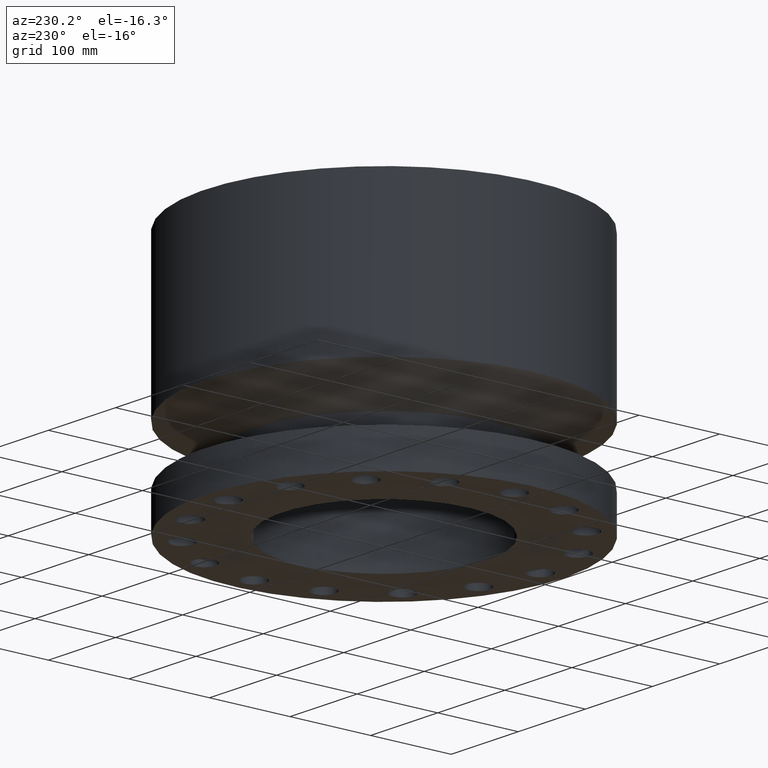
[diagram: clean part render]
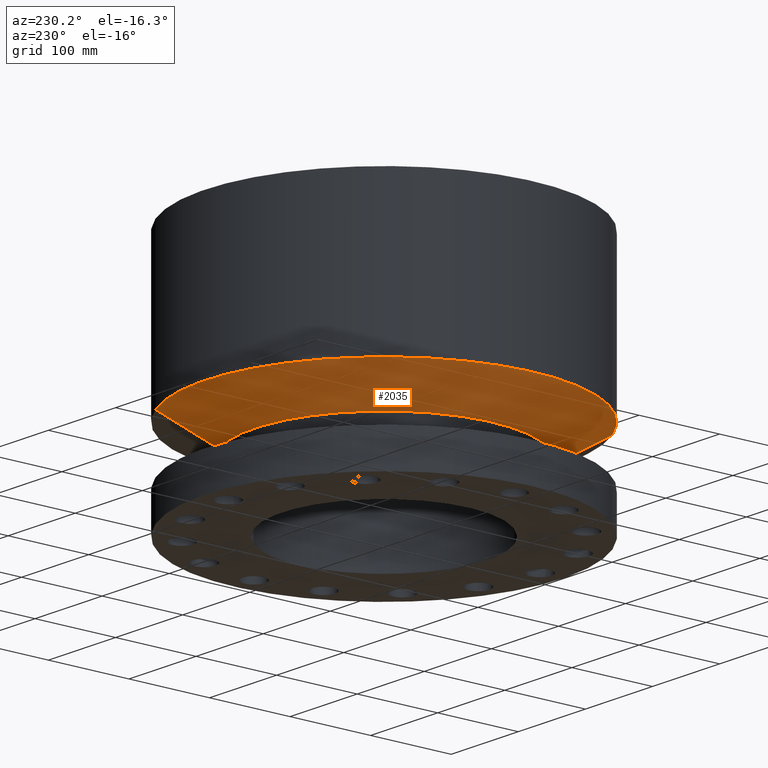
[diagram: same view with one face highlighted and labeled with its STEP entity id]
A machine part, auxiliary view. The second image highlights one B-rep face of the part: STEP entity #2035.
In plain terms, the highlighted conical surface has half-angle 60 deg.
Its self-contained STEP definition (entity closure, byte-faithful):
#1470=AXIS2_PLACEMENT_3D('Circle Axis2P3D',#1468,#1469,$) ;
#1996=AXIS2_PLACEMENT_3D('Cone Axis2P3D',#1993,#1994,#1995) ;
#2026=AXIS2_PLACEMENT_3D('Circle Axis2P3D',#2024,#2025,$) ;
#1446=CARTESIAN_POINT('Vertex',(3.0251751486,5.53754596555,3.06750000001)) ;
#1453=CARTESIAN_POINT('Vertex',(-3.0251751486,-5.53754596555,3.06750000001)) ;
#1468=CARTESIAN_POINT('Axis2P3D Location',(0.,0.,3.06750000001)) ;
#1993=CARTESIAN_POINT('Axis2P3D Location',(0.,0.,3.06750000001)) ;
#1998=CARTESIAN_POINT('Line Origine',(3.6100743057,6.60819669106,3.77186732843)) ;
#2002=CARTESIAN_POINT('Vertex',(4.1949734628,7.67884741657,4.47623465684)) ;
#2009=CARTESIAN_POINT('Vertex',(-4.1949734628,-7.67884741657,4.47623465684)) ;
#2012=CARTESIAN_POINT('Line Origine',(-3.6100743057,-6.60819669106,3.77186732843)) ;
#2024=CARTESIAN_POINT('Axis2P3D Location',(0.,0.,4.47623465684)) ;
#1469=DIRECTION('Axis2P3D Direction',(0.,0.,-0.0393700787402)) ;
#1994=DIRECTION('Axis2P3D Direction',(-0.,-0.,0.0393700787402)) ;
#1995=DIRECTION('Axis2P3D XDirection',(0.0188750212049,0.0345504945626,0.)) ;
#1999=DIRECTION('Vector Direction',(0.0163462478604,0.0299216060045,0.0196850393701)) ;
#2013=DIRECTION('Vector Direction',(-0.0163462478604,-0.0299216060045,0.0196850393701)) ;
#2025=DIRECTION('Axis2P3D Direction',(-0.,0.,0.0393700787402)) ;
#2000=VECTOR('Line Direction',#1999,0.0393700787402) ;
#2014=VECTOR('Line Direction',#2013,0.0393700787402) ;
#2030=ORIENTED_EDGE('',*,*,#1472,.F.) ;
#2031=ORIENTED_EDGE('',*,*,#2016,.T.) ;
#2032=ORIENTED_EDGE('',*,*,#2028,.T.) ;
#2033=ORIENTED_EDGE('',*,*,#2004,.F.) ;
#2035=ADVANCED_FACE('PartBody',(#2034),#1997,.T.) ;
#1471=CIRCLE('generated circle',#1470,6.31000000003) ;
#2027=CIRCLE('generated circle',#2026,8.75000000003) ;
#1997=CONICAL_SURFACE('Cone',#1996,6.31000000003,1.0471975512) ;
#1472=EDGE_CURVE('',#1454,#1447,#1471,.T.) ;
#2004=EDGE_CURVE('',#1447,#2003,#2001,.T.) ;
#2016=EDGE_CURVE('',#1454,#2010,#2015,.T.) ;
#2028=EDGE_CURVE('',#2010,#2003,#2027,.F.) ;
#2029=EDGE_LOOP('',(#2030,#2031,#2032,#2033)) ;
#2034=FACE_OUTER_BOUND('',#2029,.T.) ;
#2001=LINE('Line',#1998,#2000) ;
#2015=LINE('Line',#2012,#2014) ;
#1447=VERTEX_POINT('',#1446) ;
#1454=VERTEX_POINT('',#1453) ;
#2003=VERTEX_POINT('',#2002) ;
#2010=VERTEX_POINT('',#2009) ;